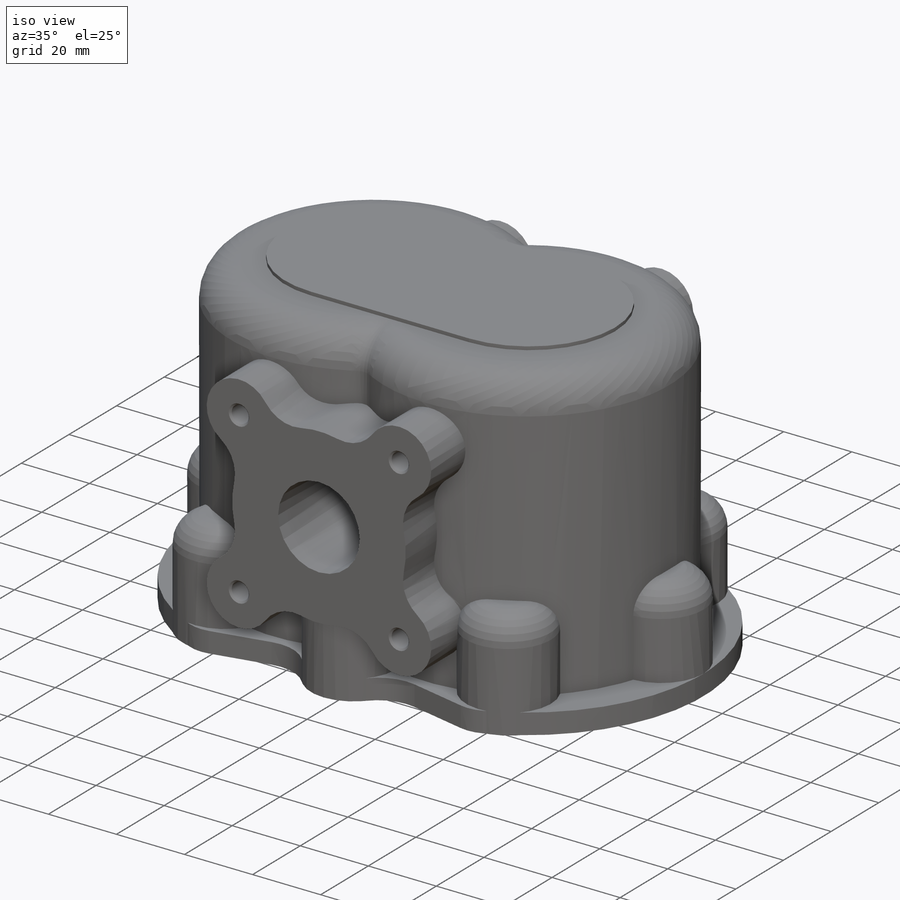
[diagram: iso view]
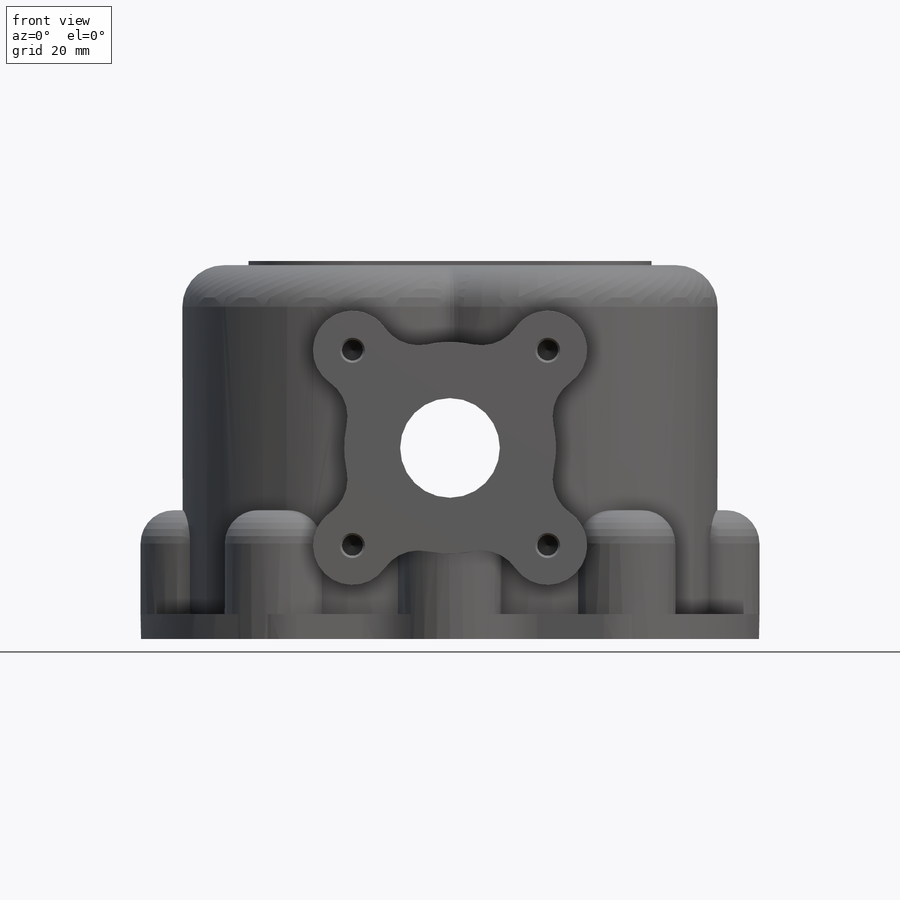
[diagram: front view]
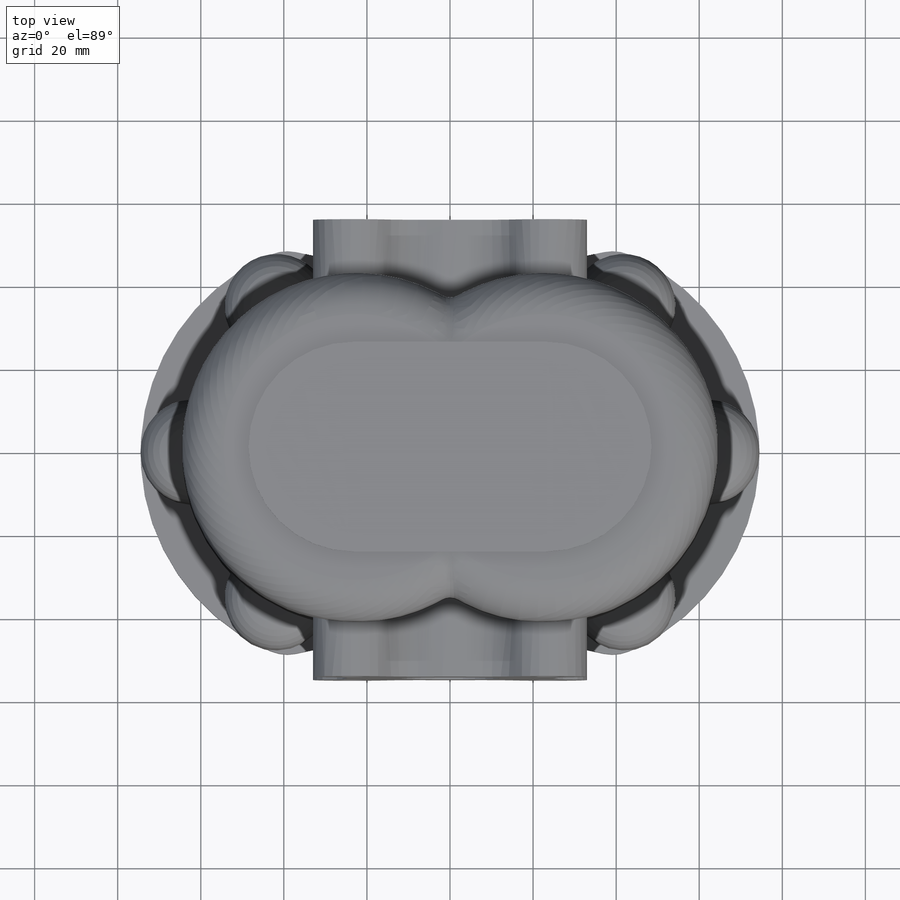
[diagram: top view]
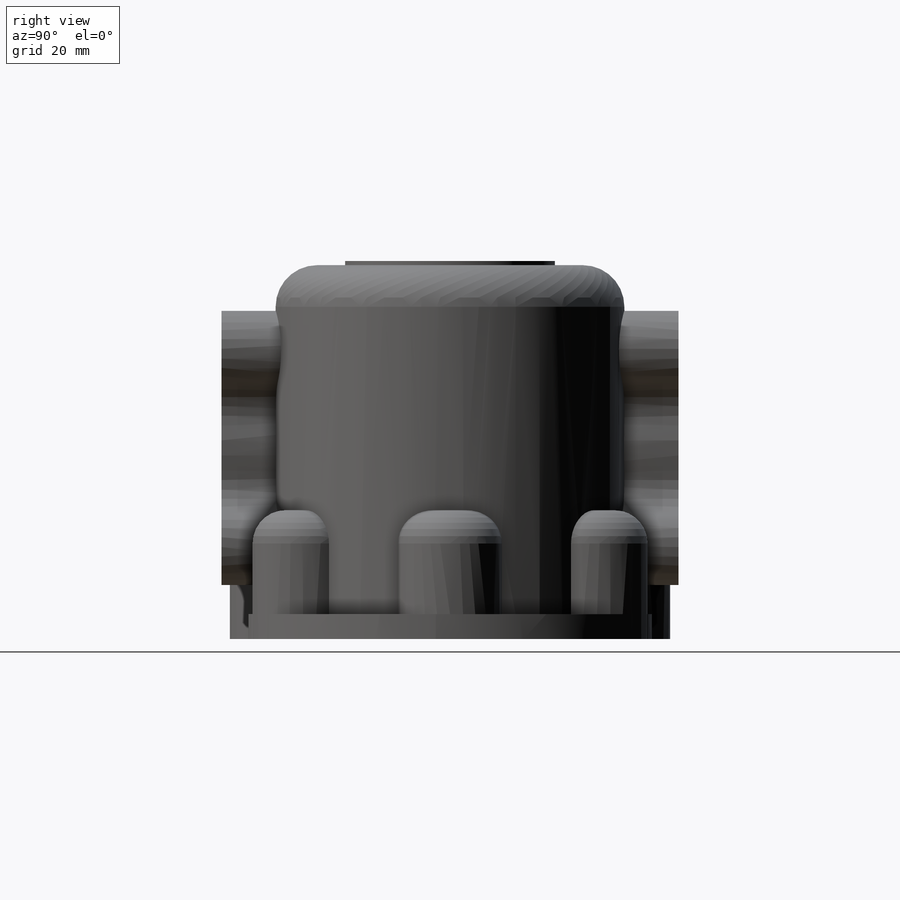
[diagram: right view]
SOLIDWORKS PART (.sldprt)
format: sldprt  version: not decoded by parser v0  size: 996,864 bytes
history: native  units: mm
features: sketch x17, thread x16, cut_extrude x6, extrude x5, fillet x4, plane x3, hole x3, material x1 (+8 scaffold rows collapsed)
feature tree (63):
  scaffold x8  (default folders/planes/origin — collapsed)
  material  "АЛ8Т4 ГОСТ 1583-93"
  plane  "Спереди"
  plane  "Сверху"
  plane  "Справа"
  sketch  "Эскиз2"  dims[c1.D2=52.0mm c1.D3=52.0mm c1.D5=12.5mm c1.D6=12.5mm c1.D7=12.0mm c1.D8=12.0mm c1.D9=10.0mm c1.D1=106.0mm c1.D4=149.0mm c1.D10=~20.620401mm c2.D10=~133.27512deg c3.D10=~77.113241mm c3.D11=~16.071761mm c4.D11=~24.267867deg c5.D11=~165.46225mm c6.D11=~12.133933deg c7.D11=~16.439026mm]
  extrude  "Бобышка-Вытянуть1"  Depth=6mm
  sketch  "Эскиз3"  dims[D2=84.0mm D3=84.0mm D1=129.0mm]
  extrude  "Бобышка-Вытянуть2"  Depth=90mm
  fillet  "Скругление1"  Radius=10mm
  sketch  "Эскиз4"  dims[c1.D3=25.0mm c1.D4=25.0mm c1.D5=25.0mm c1.D9=25.0mm c1.D1=124.0mm c1.D2=81.0mm c1.D6=81.0mm c1.D8=20.25mm c2.D8=120.0deg c2.D10=20.25mm c3.D10=120.0deg c3.D6=6.0 c3.D7=6.0]
  extrude  "Бобышка-Вытянуть3"  Depth=31mm
  fillet  "Скругление3"  Radius=8mm
  sketch  "Эскиз9"  dims[D1=24.0mm D3=51.0mm D6=19.0mm D7=19.0mm D8=19.0mm D9=19.0mm D10=10.0mm D11=10.0mm D2=46.0mm D4=47.0mm D5=47.0mm]
  extrude  "Бобышка-Вытянуть5"  Depth=55mm
  sketch  "Эскиз5"  dims[D1=111.0mm D2=66.0mm]
  cut_extrude  "Вырез-Вытянуть1"  Depth=2mm
  sketch  "Эскиз6"  dims[D1=54.5mm D2=54.5mm]
  cut_extrude  "Вырез-Вытянуть2"  Depth=83mm
  sketch  "Эскиз7"  dims[D1=27.0mm D2=27.0mm]
  cut_extrude  "Вырез-Вытянуть3"  Depth=4mm
  fillet  "Скругление4"  Radius=4mm
  sketch  "Эскиз8"  dims[D1=97.0mm D2=50.5mm]
  fillet  "Скругление5"  Radius=4mm
  extrude  "Бобышка-Вытянуть4"  Depth=1mm
  sketch  "Эскиз10"  dims[D1=24.0mm]
  cut_extrude  "Вырез-Вытянуть4"  [1 undecoded]
  hole  "Отверстие обработанное метчиком M61"  [1 undecoded]
  sketch  "Эскиз12"
  sketch  "Эскиз11"  dims[hole-wizard template sketch: 39 standard entries collapsed; hole parameters kept: c13.Диаметр сверла=5.0mm c13.Глубина сверла=20.0mm c13.Диаметр передней зенковки=6.05mm c13.D4=~33.297463mm c13.Угол передней зенковки=90.0deg c14.D5=~14.816244mm c14.Угол заточки сверла=90.0deg]
  thread  "Отверстие резьбы1"  Diameter=12mm  [1 undecoded]
  thread  "Отверстие резьбы2"  Diameter=12mm  [1 undecoded]
  thread  "Отверстие резьбы3"  Diameter=12mm  [1 undecoded]
  thread  "Отверстие резьбы4"  Diameter=12mm  [1 undecoded]
  hole  "Отверстие обработанное метчиком M62"  [1 undecoded]
  sketch  "Эскиз14"
  sketch  "Эскиз13"  dims[hole-wizard template sketch: 39 standard entries collapsed; hole parameters kept: c13.Диаметр сверла=5.0mm c13.Глубина сверла=20.0mm c13.Диаметр передней зенковки=6.05mm c13.D4=~33.297463mm c13.Угол передней зенковки=90.0deg c14.D5=~14.816244mm c14.Угол заточки сверла=90.0deg]
  thread  "Отверстие резьбы5"  Diameter=12mm  [1 undecoded]
  thread  "Отверстие резьбы6"  Diameter=12mm  [1 undecoded]
  thread  "Отверстие резьбы7"  Diameter=12mm  [1 undecoded]
  thread  "Отверстие резьбы8"  Diameter=12mm  [1 undecoded]
  hole  "Отверстие обработанное метчиком M101"  [1 undecoded]
  sketch  "Эскиз16"  dims[c1.D2=80.0mm c1.D3=84.0mm c1.D1=127.0mm c2.D2=6.0 c2.D3=6.0]
  sketch  "Эскиз15"  dims[hole-wizard template sketch: 39 standard entries collapsed; hole parameters kept: c13.Диаметр сверла=8.5mm c13.Глубина сверла=24.5mm c13.Диаметр передней зенковки=10.05mm c13.D4=~33.297463mm c13.Угол передней зенковки=90.0deg c14.D5=~14.816244mm c14.Угол заточки сверла=90.0deg]
  thread  "Отверстие резьбы9"  Diameter=20mm  [1 undecoded]
  thread  "Отверстие резьбы10"  Diameter=20mm  [1 undecoded]
  thread  "Отверстие резьбы11"  Diameter=20mm  [1 undecoded]
  thread  "Отверстие резьбы12"  Diameter=20mm  [1 undecoded]
  thread  "Отверстие резьбы13"  Diameter=20mm  [1 undecoded]
  thread  "Отверстие резьбы14"  Diameter=20mm  [1 undecoded]
  thread  "Отверстие резьбы15"  Diameter=20mm  [1 undecoded]
  thread  "Отверстие резьбы16"  Diameter=20mm  [1 undecoded]
  sketch  "Эскиз17"  dims[D1=13.0mm]
  cut_extrude  "Вырез-Вытянуть5"  Depth=6mm
  sketch  "Эскиз18"  dims[D1=13.0mm]
  cut_extrude  "Вырез-Вытянуть6"  Depth=9mm
decode coverage: 45 of 51 modeling features carry decoded parameters
note: ~ marks probable driven/reference dimensions
note: 20 parameter values undecoded
summary: no parameter record found for 4 features
note: suppression state not decoded; provenance and decode notes live in map.json
